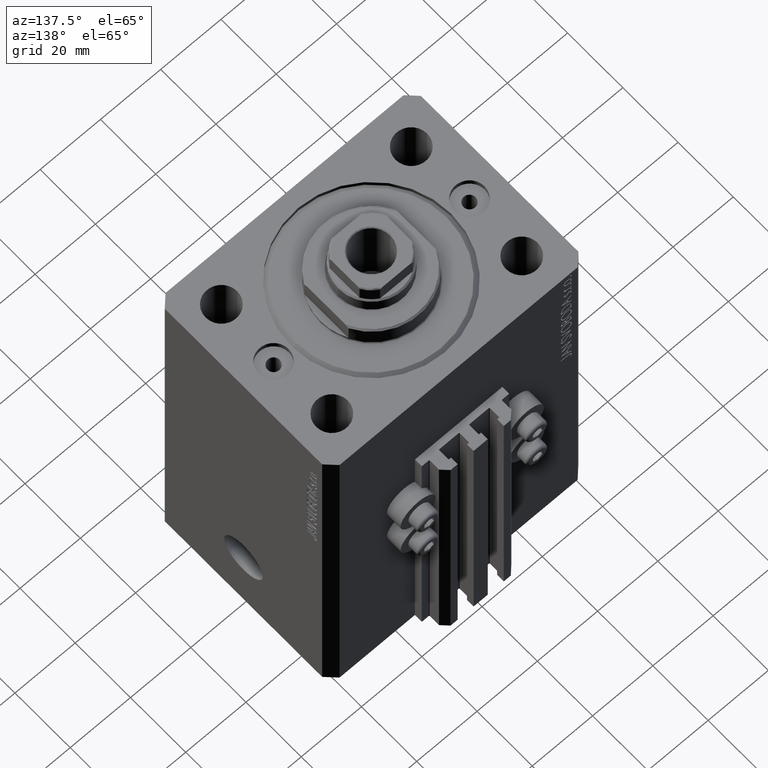
[diagram: clean part render]
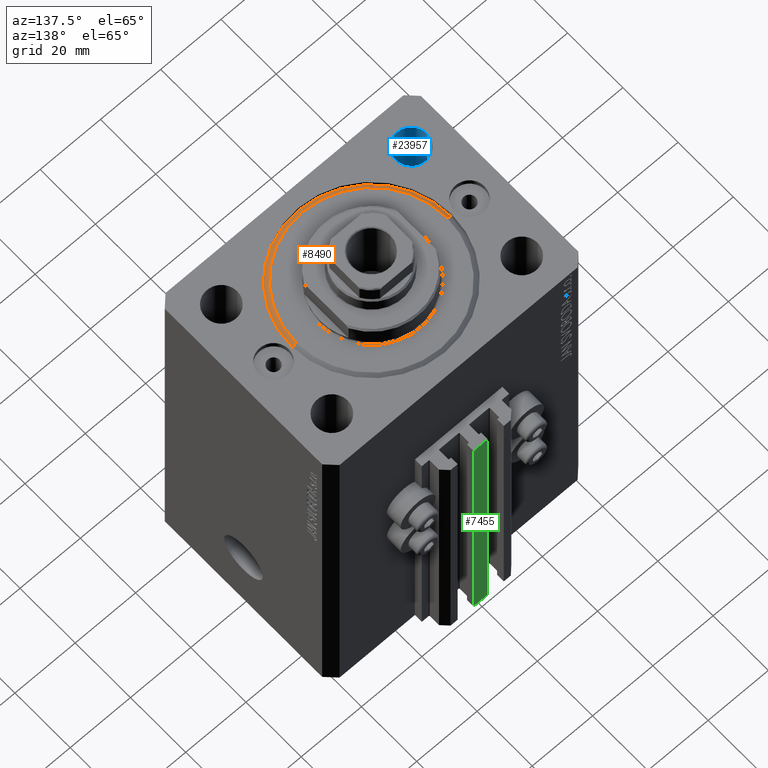
[diagram: same view with three faces highlighted in distinct colors, each labeled with its STEP entity id]
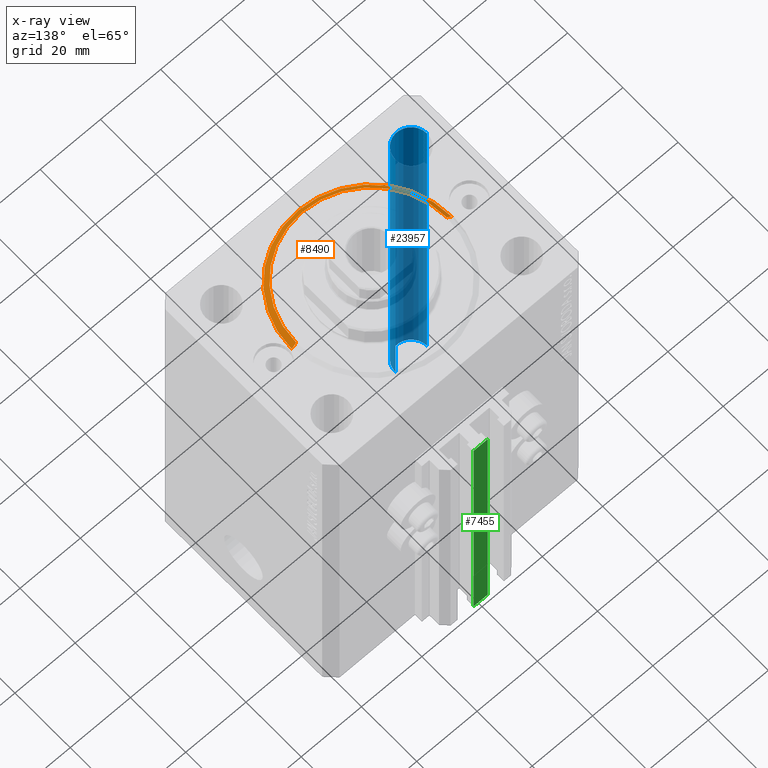
[diagram: x-ray of the same camera — body ghosted, the three highlighted faces saturated]
A machine part, auxiliary view with three faces highlighted in distinct colors.
The next image is the same camera in x-ray (body ghosted, the three faces saturated) — at least one of them is partly hidden behind the body in this view.
Their STEP definitions:

[orange] entity #8490 — the highlighted conical surface has half-angle 45 deg.
#1427 = EDGE_CURVE ( 'NONE', #38873, #20924, #32875, .T. ) ;
#2664 = CARTESIAN_POINT ( 'NONE',  ( 26.50000000000000355, 3.245314017740486554E-15, 1.500000000000018652 ) ) ;
#2746 = EDGE_LOOP ( 'NONE', ( #18846, #14573, #23053, #28525 ) ) ;
#2951 = CARTESIAN_POINT ( 'NONE',  ( 26.50000000000000355, 0.000000000000000000, 1.500000000000018652 ) ) ;
#4666 = CARTESIAN_POINT ( 'NONE',  ( 0.000000000000000000, 0.000000000000000000, 1.500000000000018652 ) ) ;
#5042 = DIRECTION ( 'NONE',  ( -0.000000000000000000, -0.000000000000000000, -1.000000000000000000 ) ) ;
#8490 = ADVANCED_FACE ( 'NONE', ( #15645 ), #10806, .T. ) ;
#9493 = VECTOR ( 'NONE', #17524, 1000.000000000000000 ) ;
#10059 = VERTEX_POINT ( 'NONE', #21835 ) ;
#10806 = CONICAL_SURFACE ( 'NONE', #41300, 26.50000000000000355, 0.7853981633974495002 ) ;
#12405 = AXIS2_PLACEMENT_3D ( 'NONE', #37803, #12729, #45658 ) ;
#12729 = DIRECTION ( 'NONE',  ( -0.000000000000000000, -0.000000000000000000, 1.000000000000000000 ) ) ;
#14573 = ORIENTED_EDGE ( 'NONE', *, *, #20586, .F. ) ;
#15166 = DIRECTION ( 'NONE',  ( 1.000000000000000000, 0.000000000000000000, 0.000000000000000000 ) ) ;
#15329 = EDGE_CURVE ( 'NONE', #20924, #17469, #19240, .T. ) ;
#15645 = FACE_OUTER_BOUND ( 'NONE', #2746, .T. ) ;
#15815 = CARTESIAN_POINT ( 'NONE',  ( -24.99999999999998224, 3.153465507804433615E-15, 0.000000000000000000 ) ) ;
#17469 = VERTEX_POINT ( 'NONE', #2664 ) ;
#17524 = DIRECTION ( 'NONE',  ( 0.7071067811865483499, 0.000000000000000000, 0.7071067811865466846 ) ) ;
#17571 = AXIS2_PLACEMENT_3D ( 'NONE', #23415, #5042, #41345 ) ;
#18753 = DIRECTION ( 'NONE',  ( -0.000000000000000000, -0.000000000000000000, 1.000000000000000000 ) ) ;
#18846 = ORIENTED_EDGE ( 'NONE', *, *, #1427, .F. ) ;
#19240 = CIRCLE ( 'NONE', #12405, 26.50000000000000355 ) ;
#20586 = EDGE_CURVE ( 'NONE', #10059, #38873, #22149, .T. ) ;
#20924 = VERTEX_POINT ( 'NONE', #34538 ) ;
#21108 = LINE ( 'NONE', #2951, #9493 ) ;
#21835 = CARTESIAN_POINT ( 'NONE',  ( 24.99999999999998224, 0.000000000000000000, 0.000000000000000000 ) ) ;
#22149 = CIRCLE ( 'NONE', #17571, 24.99999999999998224 ) ;
#23053 = ORIENTED_EDGE ( 'NONE', *, *, #43296, .T. ) ;
#23415 = CARTESIAN_POINT ( 'NONE',  ( 0.000000000000000000, 0.000000000000000000, 0.000000000000000000 ) ) ;
#26409 = DIRECTION ( 'NONE',  ( -0.7071067811865483499, 8.659560562354942719E-17, 0.7071067811865466846 ) ) ;
#28031 = VECTOR ( 'NONE', #26409, 1000.000000000000000 ) ;
#28525 = ORIENTED_EDGE ( 'NONE', *, *, #15329, .F. ) ;
#32875 = LINE ( 'NONE', #42902, #28031 ) ;
#34538 = CARTESIAN_POINT ( 'NONE',  ( -26.50000000000000355, 0.000000000000000000, 1.500000000000018652 ) ) ;
#37803 = CARTESIAN_POINT ( 'NONE',  ( 0.000000000000000000, 0.000000000000000000, 1.500000000000018652 ) ) ;
#38873 = VERTEX_POINT ( 'NONE', #15815 ) ;
#41300 = AXIS2_PLACEMENT_3D ( 'NONE', #4666, #18753, #15166 ) ;
#41345 = DIRECTION ( 'NONE',  ( 1.000000000000000000, 0.000000000000000000, 0.000000000000000000 ) ) ;
#42902 = CARTESIAN_POINT ( 'NONE',  ( -26.50000000000000355, 3.245314017740486554E-15, 1.500000000000018652 ) ) ;
#43296 = EDGE_CURVE ( 'NONE', #10059, #17469, #21108, .T. ) ;
#45658 = DIRECTION ( 'NONE',  ( 1.000000000000000000, 0.000000000000000000, 0.000000000000000000 ) ) ;

[blue] entity #23957 — the highlighted cylindrical surface (edge-blend (fillet) strip) has radius 5.25 mm, axis along (0, 0, 1).
#20 = CARTESIAN_POINT ( 'NONE',  ( -36.74999999999999289, -20.00000000000000355, -137.8492424049174758 ) ) ;
#679 = EDGE_CURVE ( 'NONE', #40371, #6063, #28695, .T. ) ;
#1486 = CARTESIAN_POINT ( 'NONE',  ( -26.24999999999999289, -20.00000000000000355, -137.8492424049174758 ) ) ;
#2841 = DIRECTION ( 'NONE',  ( 1.000000000000000000, 0.000000000000000000, 0.000000000000000000 ) ) ;
#5775 = DIRECTION ( 'NONE',  ( -0.000000000000000000, -0.000000000000000000, 1.000000000000000000 ) ) ;
#6063 = VERTEX_POINT ( 'NONE', #36565 ) ;
#6445 = ORIENTED_EDGE ( 'NONE', *, *, #679, .T. ) ;
#7583 = AXIS2_PLACEMENT_3D ( 'NONE', #33662, #25790, #13696 ) ;
#7773 = CYLINDRICAL_SURFACE ( 'NONE', #43340, 5.250000000000000888 ) ;
#8002 = CARTESIAN_POINT ( 'NONE',  ( -31.49999999999999289, -20.00000000000000355, -137.8492424049174758 ) ) ;
#13590 = CARTESIAN_POINT ( 'NONE',  ( -31.49999999999999289, -20.00000000000000355, -123.0000000000000000 ) ) ;
#13696 = DIRECTION ( 'NONE',  ( 1.000000000000000000, 0.000000000000000000, 0.000000000000000000 ) ) ;
#14063 = AXIS2_PLACEMENT_3D ( 'NONE', #13590, #20996, #2841 ) ;
#14437 = CARTESIAN_POINT ( 'NONE',  ( -26.24999999999999289, -20.00000000000000355, 0.000000000000000000 ) ) ;
#15345 = ORIENTED_EDGE ( 'NONE', *, *, #46821, .T. ) ;
#15813 = LINE ( 'NONE', #1486, #29301 ) ;
#18764 = CARTESIAN_POINT ( 'NONE',  ( -26.24999999999999289, -20.00000000000000355, -123.0000000000000000 ) ) ;
#20364 = VECTOR ( 'NONE', #21762, 1000.000000000000000 ) ;
#20996 = DIRECTION ( 'NONE',  ( -0.000000000000000000, -0.000000000000000000, -1.000000000000000000 ) ) ;
#21762 = DIRECTION ( 'NONE',  ( -0.000000000000000000, -0.000000000000000000, 1.000000000000000000 ) ) ;
#21871 = DIRECTION ( 'NONE',  ( 1.000000000000000000, 0.000000000000000000, 0.000000000000000000 ) ) ;
#21981 = EDGE_LOOP ( 'NONE', ( #15345, #6445, #39876, #25071 ) ) ;
#23957 = ADVANCED_FACE ( 'NONE', ( #25923 ), #7773, .F. ) ;
#25071 = ORIENTED_EDGE ( 'NONE', *, *, #45681, .F. ) ;
#25790 = DIRECTION ( 'NONE',  ( 0.000000000000000000, 0.000000000000000000, 1.000000000000000000 ) ) ;
#25923 = FACE_OUTER_BOUND ( 'NONE', #21981, .T. ) ;
#26023 = EDGE_CURVE ( 'NONE', #6063, #37917, #31977, .T. ) ;
#28695 = LINE ( 'NONE', #20, #20364 ) ;
#29301 = VECTOR ( 'NONE', #5775, 1000.000000000000000 ) ;
#30836 = CIRCLE ( 'NONE', #14063, 5.250000000000000888 ) ;
#31977 = CIRCLE ( 'NONE', #7583, 5.250000000000000888 ) ;
#33662 = CARTESIAN_POINT ( 'NONE',  ( -31.49999999999999289, -20.00000000000000355, 0.000000000000000000 ) ) ;
#36565 = CARTESIAN_POINT ( 'NONE',  ( -36.74999999999999289, -20.00000000000000355, 0.000000000000000000 ) ) ;
#36769 = VERTEX_POINT ( 'NONE', #18764 ) ;
#37456 = CARTESIAN_POINT ( 'NONE',  ( -36.74999999999999289, -20.00000000000000355, -123.0000000000000000 ) ) ;
#37917 = VERTEX_POINT ( 'NONE', #14437 ) ;
#39876 = ORIENTED_EDGE ( 'NONE', *, *, #26023, .T. ) ;
#40371 = VERTEX_POINT ( 'NONE', #37456 ) ;
#43340 = AXIS2_PLACEMENT_3D ( 'NONE', #8002, #47158, #21871 ) ;
#45681 = EDGE_CURVE ( 'NONE', #36769, #37917, #15813, .T. ) ;
#46821 = EDGE_CURVE ( 'NONE', #36769, #40371, #30836, .T. ) ;
#47158 = DIRECTION ( 'NONE',  ( -0.000000000000000000, -0.000000000000000000, 1.000000000000000000 ) ) ;

[green] entity #7455 — the highlighted planar face has unit normal (0, -1, 0).
#1031 = CARTESIAN_POINT ( 'NONE',  ( -2.350000000000003642, 39.50000000000000711, -33.00000000000000000 ) ) ;
#1400 = VERTEX_POINT ( 'NONE', #29287 ) ;
#2880 = ORIENTED_EDGE ( 'NONE', *, *, #43264, .T. ) ;
#3238 = EDGE_CURVE ( 'NONE', #18716, #45290, #11362, .T. ) ;
#7455 = ADVANCED_FACE ( 'NONE', ( #36113 ), #17741, .F. ) ;
#8663 = LINE ( 'NONE', #1031, #34278 ) ;
#10924 = VECTOR ( 'NONE', #13949, 1000.000000000000000 ) ;
#11362 = LINE ( 'NONE', #18294, #28893 ) ;
#13176 = ORIENTED_EDGE ( 'NONE', *, *, #3238, .F. ) ;
#13949 = DIRECTION ( 'NONE',  ( 0.000000000000000000, 0.000000000000000000, 1.000000000000000000 ) ) ;
#14011 = DIRECTION ( 'NONE',  ( 1.000000000000000000, 0.000000000000000000, 0.000000000000000000 ) ) ;
#16760 = CARTESIAN_POINT ( 'NONE',  ( 2.349999999999999645, 39.50000000000000711, -123.0000000000000000 ) ) ;
#16885 = LINE ( 'NONE', #42652, #37706 ) ;
#17741 = PLANE ( 'NONE',  #42707 ) ;
#18193 = CARTESIAN_POINT ( 'NONE',  ( -2.350000000000003642, 39.50000000000000711, -123.0000000000000000 ) ) ;
#18294 = CARTESIAN_POINT ( 'NONE',  ( 2.349999999999999645, 39.50000000000000711, -123.0000000000000000 ) ) ;
#18433 = VERTEX_POINT ( 'NONE', #30687 ) ;
#18716 = VERTEX_POINT ( 'NONE', #16760 ) ;
#23227 = DIRECTION ( 'NONE',  ( 1.000000000000000000, 0.000000000000000000, 0.000000000000000000 ) ) ;
#28278 = LINE ( 'NONE', #28744, #10924 ) ;
#28720 = DIRECTION ( 'NONE',  ( 0.000000000000000000, -0.000000000000000000, -1.000000000000000000 ) ) ;
#28744 = CARTESIAN_POINT ( 'NONE',  ( -2.350000000000003642, 39.50000000000000711, -123.0000000000000000 ) ) ;
#28893 = VECTOR ( 'NONE', #39779, 1000.000000000000000 ) ;
#29287 = CARTESIAN_POINT ( 'NONE',  ( -2.350000000000003642, 39.50000000000000711, -123.0000000000000000 ) ) ;
#30443 = EDGE_CURVE ( 'NONE', #18433, #45290, #8663, .T. ) ;
#30687 = CARTESIAN_POINT ( 'NONE',  ( -2.350000000000003642, 39.50000000000000711, -33.00000000000000000 ) ) ;
#33792 = CARTESIAN_POINT ( 'NONE',  ( 2.349999999999999645, 39.50000000000000711, -33.00000000000000000 ) ) ;
#34169 = ORIENTED_EDGE ( 'NONE', *, *, #47029, .F. ) ;
#34278 = VECTOR ( 'NONE', #23227, 1000.000000000000000 ) ;
#36113 = FACE_OUTER_BOUND ( 'NONE', #39617, .T. ) ;
#37706 = VECTOR ( 'NONE', #14011, 1000.000000000000000 ) ;
#39617 = EDGE_LOOP ( 'NONE', ( #44401, #13176, #34169, #2880 ) ) ;
#39779 = DIRECTION ( 'NONE',  ( 0.000000000000000000, 0.000000000000000000, 1.000000000000000000 ) ) ;
#42652 = CARTESIAN_POINT ( 'NONE',  ( -2.350000000000003642, 39.50000000000000711, -123.0000000000000000 ) ) ;
#42707 = AXIS2_PLACEMENT_3D ( 'NONE', #18193, #43038, #28720 ) ;
#43038 = DIRECTION ( 'NONE',  ( 0.000000000000000000, -1.000000000000000000, 0.000000000000000000 ) ) ;
#43264 = EDGE_CURVE ( 'NONE', #1400, #18433, #28278, .T. ) ;
#44401 = ORIENTED_EDGE ( 'NONE', *, *, #30443, .T. ) ;
#45290 = VERTEX_POINT ( 'NONE', #33792 ) ;
#47029 = EDGE_CURVE ( 'NONE', #1400, #18716, #16885, .T. ) ;